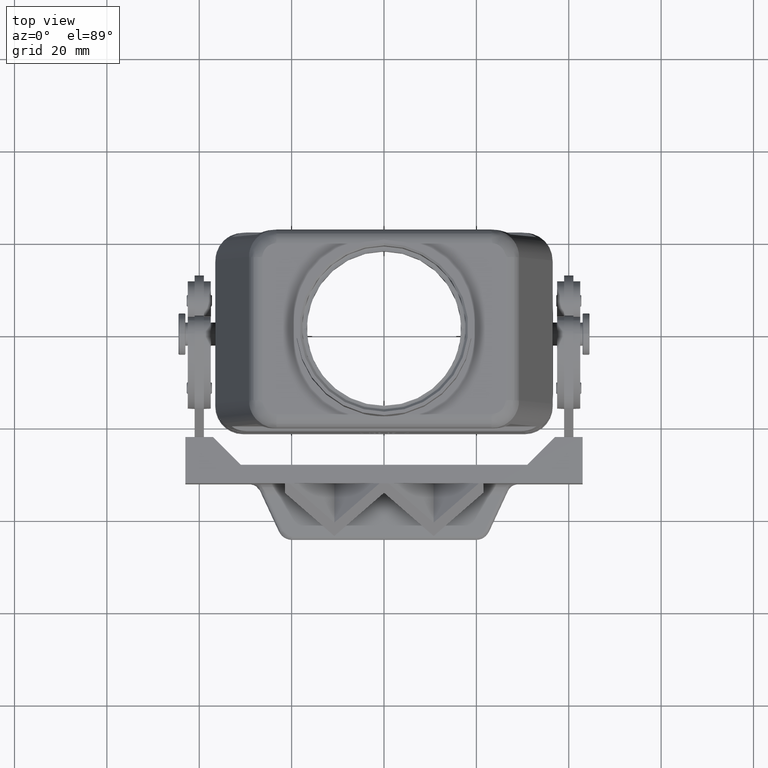
[diagram: clean part render]
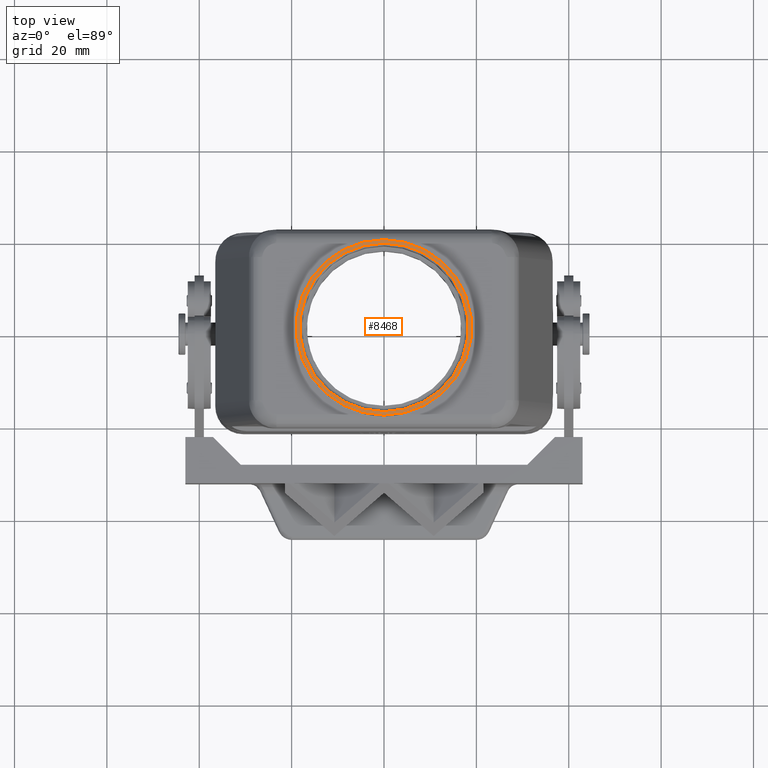
[diagram: same view with one face highlighted and labeled with its STEP entity id]
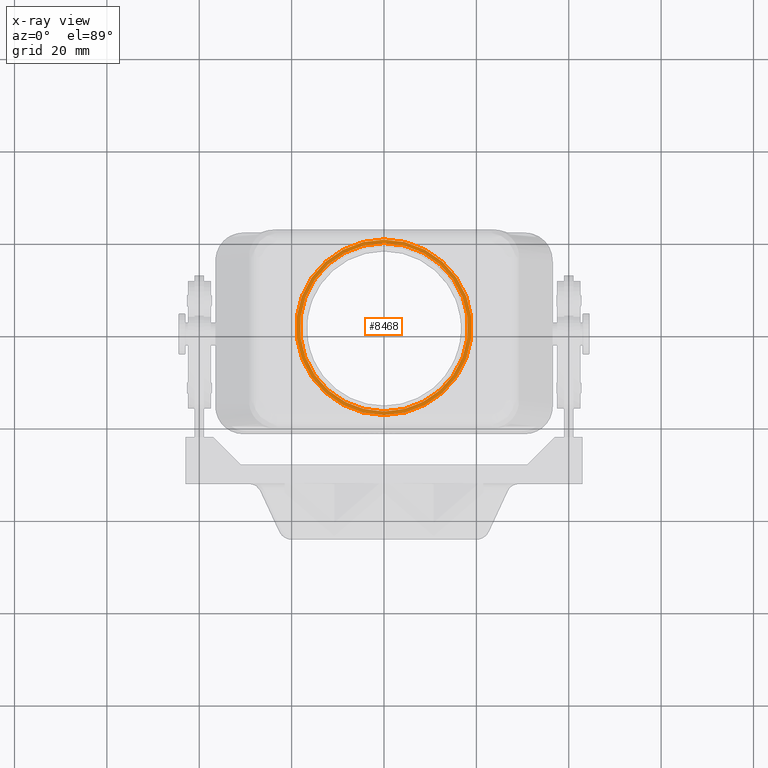
[diagram: x-ray of the same camera — body ghosted, the highlighted face saturated]
A machine part, top view. The second image highlights one B-rep face of the part: STEP entity #8468.
The next image is the same camera in x-ray: the body ghosted, the highlighted face saturated — about 0% of this face is hidden behind the body in this view.
In plain terms, the highlighted planar face has unit normal (0, 0, 1).
Its self-contained STEP definition (entity closure, byte-faithful):
#8012=CARTESIAN_POINT('',(0.0,18.999999999999993,91.000000000000014));
#8013=VERTEX_POINT('',#8012);
#8022=CARTESIAN_POINT('',(2.326752E-015,-18.999999999999993,91.000000000000014));
#8023=VERTEX_POINT('',#8022);
#8024=CARTESIAN_POINT('',(0.0,2.465190E-031,91.000000000000014));
#8025=DIRECTION('',(0.0,0.0,-1.0));
#8026=DIRECTION('',(0.0,1.0,0.0));
#8027=AXIS2_PLACEMENT_3D('',#8024,#8025,#8026);
#8028=CIRCLE('',#8027,18.999999999999993);
#8029=EDGE_CURVE('',#8013,#8023,#8028,.T.);
#8072=CARTESIAN_POINT('',(0.0,18.239999999999998,91.000000000000014));
#8073=VERTEX_POINT('',#8072);
#8082=CARTESIAN_POINT('',(2.233682E-015,-18.239999999999998,91.0));
#8083=VERTEX_POINT('',#8082);
#8084=CARTESIAN_POINT('',(0.0,2.465190E-031,91.000000000000014));
#8085=DIRECTION('',(0.0,0.0,-1.0));
#8086=DIRECTION('',(0.0,1.0,0.0));
#8087=AXIS2_PLACEMENT_3D('',#8084,#8085,#8086);
#8088=CIRCLE('',#8087,18.239999999999998);
#8089=EDGE_CURVE('',#8083,#8073,#8088,.T.);
#8439=CARTESIAN_POINT('',(0.0,2.465190E-031,91.000000000000014));
#8440=DIRECTION('',(0.0,0.0,-1.0));
#8441=DIRECTION('',(0.0,1.0,0.0));
#8442=AXIS2_PLACEMENT_3D('',#8439,#8440,#8441);
#8443=CIRCLE('',#8442,18.239999999999998);
#8444=EDGE_CURVE('',#8073,#8083,#8443,.T.);
#8449=CARTESIAN_POINT('',(0.0,18.619999999999997,91.000000000000014));
#8450=DIRECTION('',(0.0,0.0,1.0));
#8451=DIRECTION('',(1.0,0.0,0.0));
#8452=AXIS2_PLACEMENT_3D('',#8449,#8450,#8451);
#8453=PLANE('',#8452);
#8454=ORIENTED_EDGE('',*,*,#8029,.F.);
#8455=CARTESIAN_POINT('',(0.0,2.465190E-031,91.000000000000014));
#8456=DIRECTION('',(0.0,0.0,-1.0));
#8457=DIRECTION('',(0.0,1.0,0.0));
#8458=AXIS2_PLACEMENT_3D('',#8455,#8456,#8457);
#8459=CIRCLE('',#8458,18.999999999999993);
#8460=EDGE_CURVE('',#8023,#8013,#8459,.T.);
#8461=ORIENTED_EDGE('',*,*,#8460,.F.);
#8462=EDGE_LOOP('',(#8454,#8461));
#8463=FACE_OUTER_BOUND('',#8462,.T.);
#8464=ORIENTED_EDGE('',*,*,#8444,.T.);
#8465=ORIENTED_EDGE('',*,*,#8089,.T.);
#8466=EDGE_LOOP('',(#8464,#8465));
#8467=FACE_BOUND('',#8466,.T.);
#8468=ADVANCED_FACE('',(#8463,#8467),#8453,.T.);